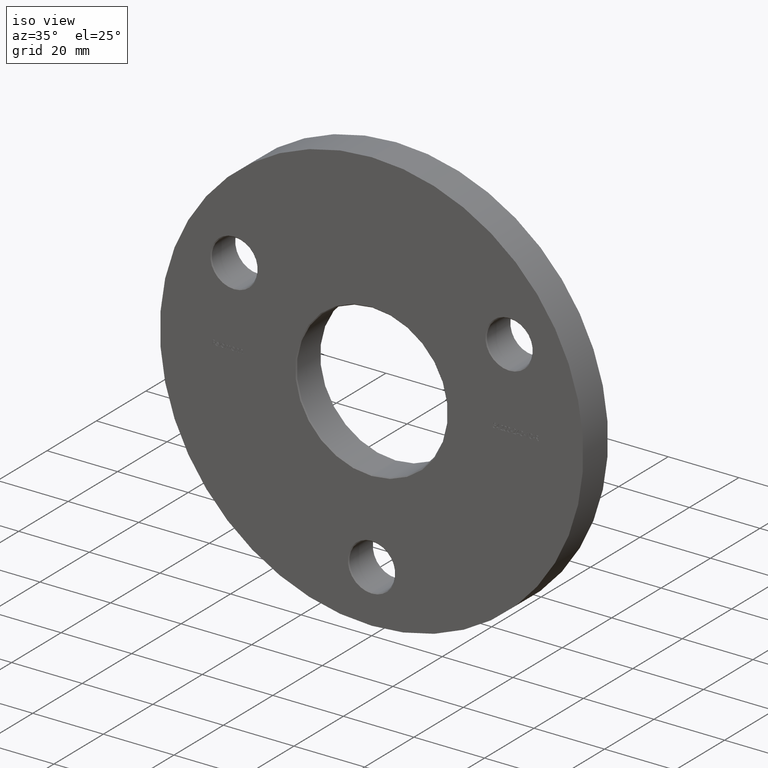
[diagram: clean part render]
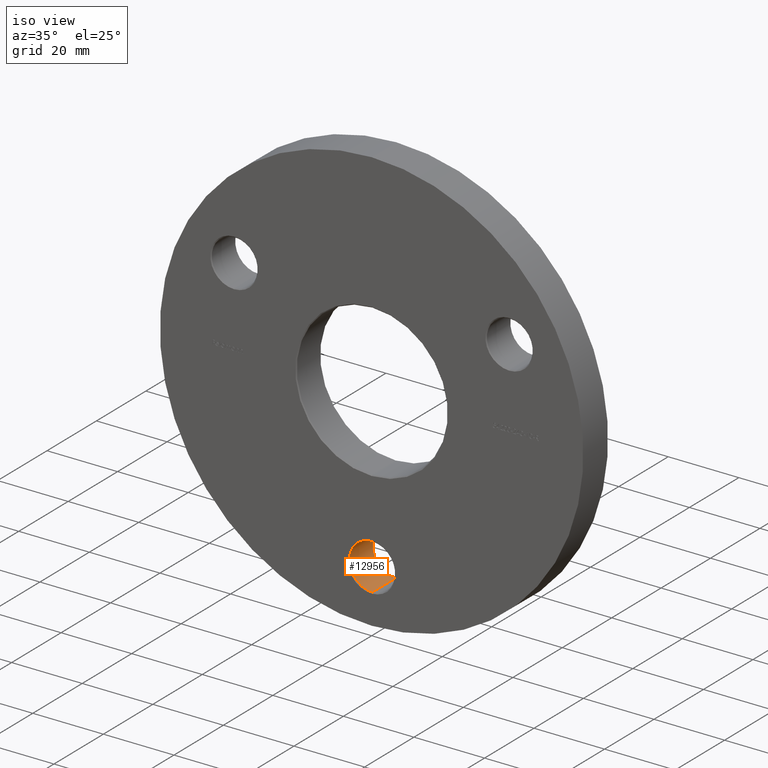
[diagram: same view with one face highlighted and labeled with its STEP entity id]
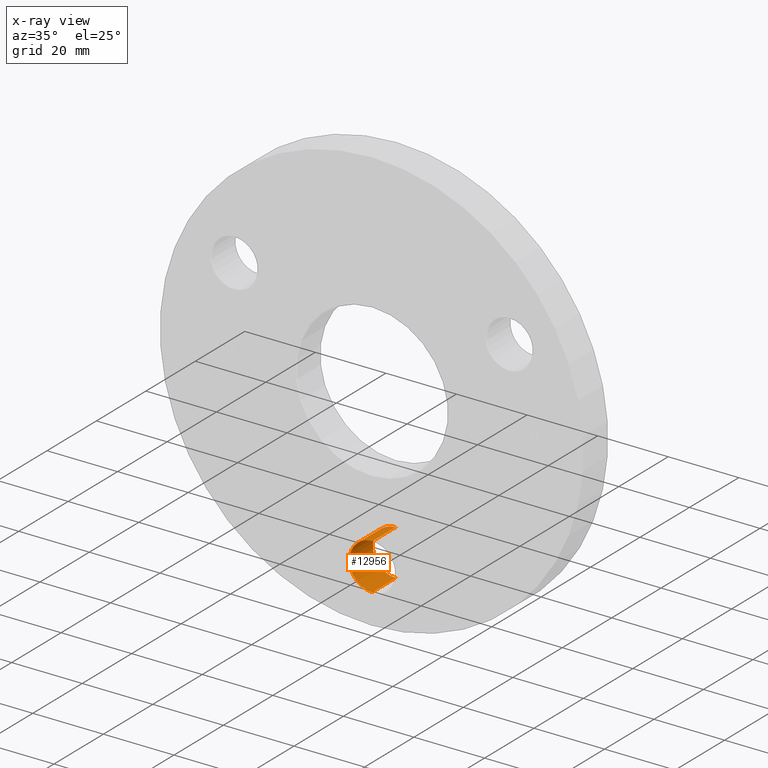
[diagram: x-ray of the same camera — body ghosted, the highlighted face saturated]
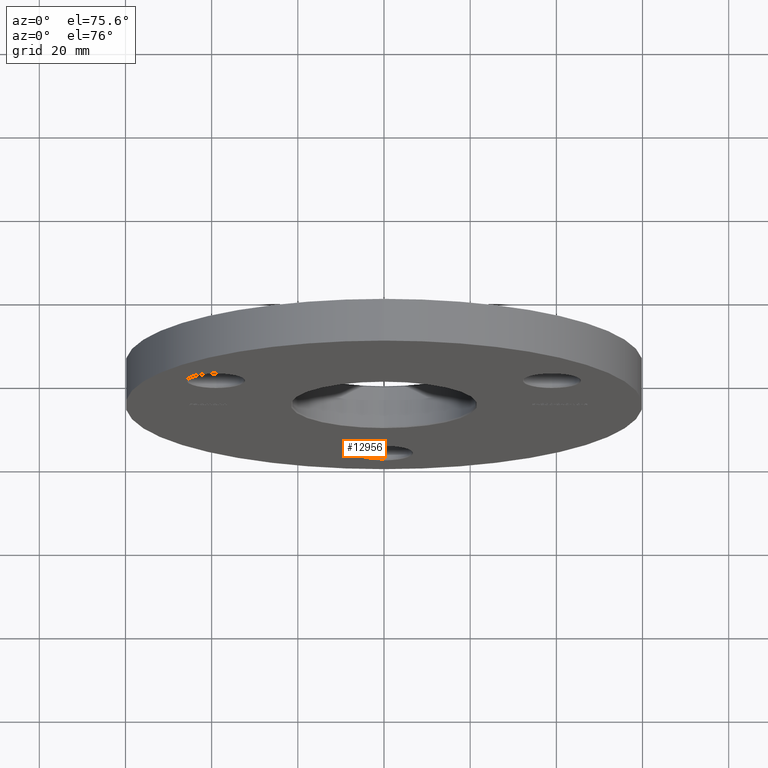
[diagram: same view with one face highlighted and labeled with its STEP entity id]
A machine part, iso view. The second image highlights one B-rep face of the part: STEP entity #12956.
The next image is the same camera in x-ray: the body ghosted, the highlighted face saturated — about 0% of this face is hidden behind the body in this view.
A second angle (auxiliary view) of the same face is appended — the face is thin or edge-on in the first view.
In plain terms, the highlighted cylindrical surface (edge-blend (fillet) strip) has radius 6.5 mm, axis along (-0, -1, -0).
Its self-contained STEP definition (entity closure, byte-faithful):
#343 = EDGE_CURVE ( 'NONE', #969, #3877, #8134, .T. ) ;
#571 = CYLINDRICAL_SURFACE ( 'NONE', #14276, 6.499999999999999112 ) ;
#969 = VERTEX_POINT ( 'NONE', #9133 ) ;
#1047 = DIRECTION ( 'NONE',  ( 0.000000000000000000, 0.000000000000000000, 1.000000000000000000 ) ) ;
#1055 = AXIS2_PLACEMENT_3D ( 'NONE', #4579, #3481, #1047 ) ;
#2376 = CARTESIAN_POINT ( 'NONE',  ( 0.000000000000000000, 0.2499999999999707456, -45.00000000000000000 ) ) ;
#2402 = CARTESIAN_POINT ( 'NONE',  ( 7.960204194457797449E-16, 9.750000000000065725, -38.50000000000000000 ) ) ;
#2479 = DIRECTION ( 'NONE',  ( 0.000000000000000000, 0.000000000000000000, 1.000000000000000000 ) ) ;
#2663 = VERTEX_POINT ( 'NONE', #2402 ) ;
#3093 = CARTESIAN_POINT ( 'NONE',  ( 0.000000000000000000, 10.00000000000000000, -51.50000000000000000 ) ) ;
#3481 = DIRECTION ( 'NONE',  ( 0.000000000000000000, 1.000000000000000000, 0.000000000000000000 ) ) ;
#3877 = VERTEX_POINT ( 'NONE', #6175 ) ;
#4290 = DIRECTION ( 'NONE',  ( -0.000000000000000000, -1.000000000000000000, -0.000000000000000000 ) ) ;
#4393 = VERTEX_POINT ( 'NONE', #14557 ) ;
#4436 = CARTESIAN_POINT ( 'NONE',  ( 7.960204194457795477E-16, 10.00000000000000000, -38.50000000000000000 ) ) ;
#4579 = CARTESIAN_POINT ( 'NONE',  ( 0.000000000000000000, 9.750000000000065725, -45.00000000000000000 ) ) ;
#4746 = FACE_OUTER_BOUND ( 'NONE', #13725, .T. ) ;
#5195 = CIRCLE ( 'NONE', #7339, 6.499999999999999112 ) ;
#5488 = CARTESIAN_POINT ( 'NONE',  ( 0.000000000000000000, 10.00000000000000000, -45.00000000000000000 ) ) ;
#5922 = LINE ( 'NONE', #4436, #12003 ) ;
#6111 = CIRCLE ( 'NONE', #1055, 6.499999999999999112 ) ;
#6175 = CARTESIAN_POINT ( 'NONE',  ( 0.000000000000000000, 0.2499999999999707456, -51.50000000000000000 ) ) ;
#6609 = EDGE_CURVE ( 'NONE', #4393, #3877, #5195, .T. ) ;
#7339 = AXIS2_PLACEMENT_3D ( 'NONE', #2376, #14459, #2479 ) ;
#8134 = LINE ( 'NONE', #3093, #12720 ) ;
#8458 = ORIENTED_EDGE ( 'NONE', *, *, #6609, .T. ) ;
#8493 = ORIENTED_EDGE ( 'NONE', *, *, #12437, .T. ) ;
#9133 = CARTESIAN_POINT ( 'NONE',  ( 0.000000000000000000, 9.750000000000065725, -51.50000000000000000 ) ) ;
#9915 = EDGE_CURVE ( 'NONE', #969, #2663, #6111, .T. ) ;
#11331 = ORIENTED_EDGE ( 'NONE', *, *, #343, .F. ) ;
#11431 = DIRECTION ( 'NONE',  ( 0.000000000000000000, 0.000000000000000000, -1.000000000000000000 ) ) ;
#12003 = VECTOR ( 'NONE', #12948, 1000.000000000000000 ) ;
#12437 = EDGE_CURVE ( 'NONE', #2663, #4393, #5922, .T. ) ;
#12720 = VECTOR ( 'NONE', #4290, 1000.000000000000000 ) ;
#12948 = DIRECTION ( 'NONE',  ( -0.000000000000000000, -1.000000000000000000, -0.000000000000000000 ) ) ;
#12956 = ADVANCED_FACE ( 'NONE', ( #4746 ), #571, .F. ) ;
#13725 = EDGE_LOOP ( 'NONE', ( #14444, #8493, #8458, #11331 ) ) ;
#14276 = AXIS2_PLACEMENT_3D ( 'NONE', #5488, #15262, #11431 ) ;
#14444 = ORIENTED_EDGE ( 'NONE', *, *, #9915, .T. ) ;
#14459 = DIRECTION ( 'NONE',  ( -0.000000000000000000, -1.000000000000000000, -0.000000000000000000 ) ) ;
#14557 = CARTESIAN_POINT ( 'NONE',  ( 7.960204194457797449E-16, 0.2499999999999707456, -38.50000000000000000 ) ) ;
#15262 = DIRECTION ( 'NONE',  ( -0.000000000000000000, -1.000000000000000000, -0.000000000000000000 ) ) ;